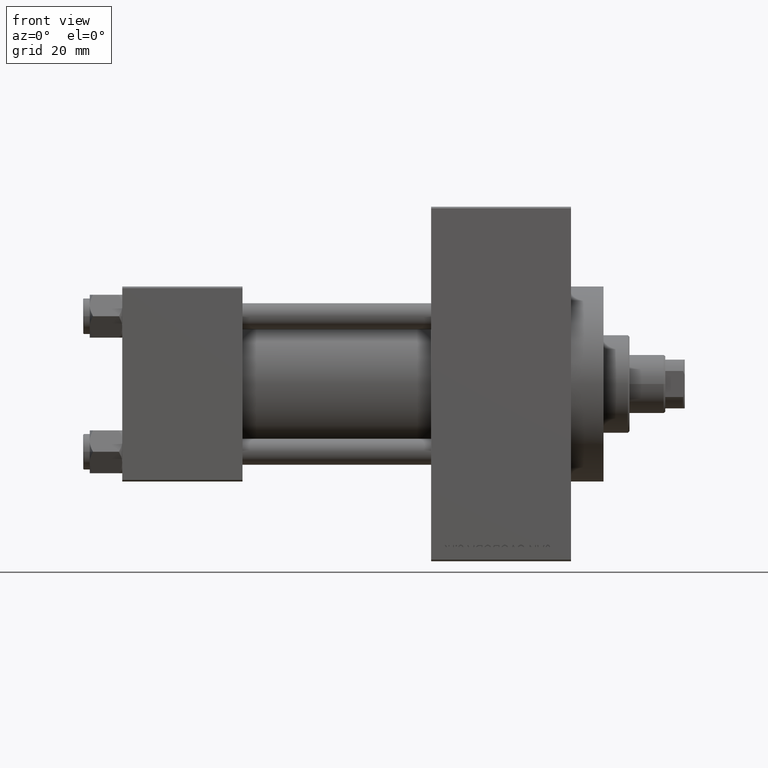
[diagram: clean part render]
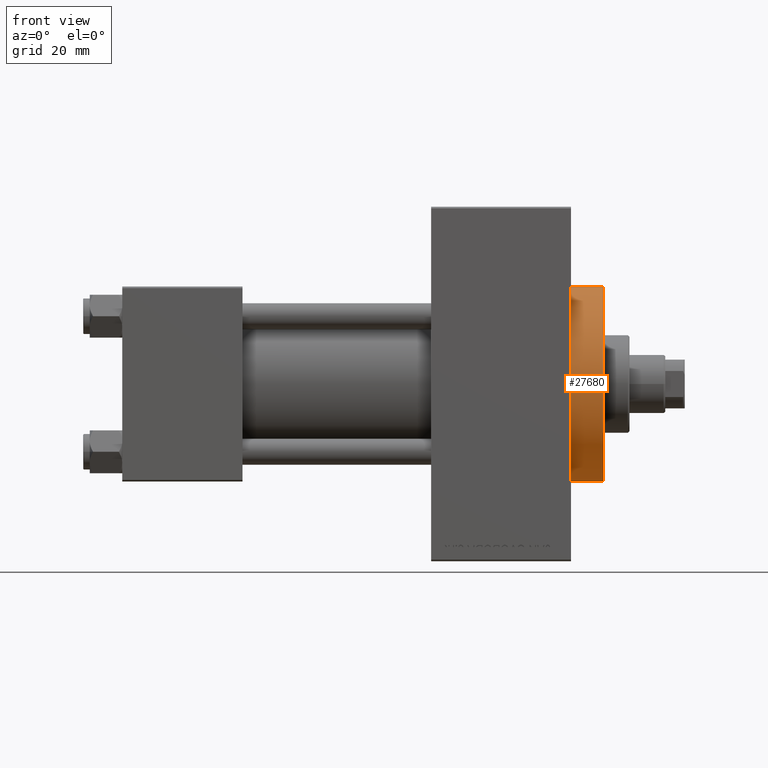
[diagram: same view with one face highlighted and labeled with its STEP entity id]
A machine part, front view. The second image highlights one B-rep face of the part: STEP entity #27680.
In plain terms, the highlighted cylindrical surface (partial cylindrical patch) has radius 30 mm, axis along (-1, -0, -0).
Its self-contained STEP definition (entity closure, byte-faithful):
#523 = DIRECTION ( 'NONE',  ( 1.000000000000000000, 0.000000000000000000, 0.000000000000000000 ) ) ;
#1015 = ORIENTED_EDGE ( 'NONE', *, *, #28588, .T. ) ;
#1358 = EDGE_CURVE ( 'NONE', #16525, #42074, #40102, .T. ) ;
#1513 = DIRECTION ( 'NONE',  ( 0.000000000000000000, 0.000000000000000000, -1.000000000000000000 ) ) ;
#3959 = DIRECTION ( 'NONE',  ( 0.000000000000000000, 0.000000000000000000, -1.000000000000000000 ) ) ;
#4256 = DIRECTION ( 'NONE',  ( -1.000000000000000000, -0.000000000000000000, -0.000000000000000000 ) ) ;
#4460 = CARTESIAN_POINT ( 'NONE',  ( 138.0000000000000000, 0.000000000000000000, 0.000000000000000000 ) ) ;
#4823 = CARTESIAN_POINT ( 'NONE',  ( 138.0000000000000000, 0.000000000000000000, 30.00000000000000000 ) ) ;
#4878 = VERTEX_POINT ( 'NONE', #38927 ) ;
#7000 = AXIS2_PLACEMENT_3D ( 'NONE', #4460, #19666, #3959 ) ;
#9496 = CARTESIAN_POINT ( 'NONE',  ( 148.0000000000000284, 3.673940397442059178E-15, -30.00000000000000000 ) ) ;
#10474 = VERTEX_POINT ( 'NONE', #15239 ) ;
#10672 = EDGE_CURVE ( 'NONE', #10474, #23582, #48368, .T. ) ;
#10825 = ORIENTED_EDGE ( 'NONE', *, *, #1358, .F. ) ;
#11283 = AXIS2_PLACEMENT_3D ( 'NONE', #26966, #523, #1513 ) ;
#12024 = AXIS2_PLACEMENT_3D ( 'NONE', #46394, #4256, #16208 ) ;
#12458 = CYLINDRICAL_SURFACE ( 'NONE', #12024, 30.00000000000000000 ) ;
#12899 = EDGE_CURVE ( 'NONE', #4878, #42074, #25319, .T. ) ;
#14088 = VECTOR ( 'NONE', #41376, 1000.000000000000000 ) ;
#14215 = CARTESIAN_POINT ( 'NONE',  ( 148.0000000000000284, 0.000000000000000000, 30.00000000000000000 ) ) ;
#15239 = CARTESIAN_POINT ( 'NONE',  ( 148.0000000000000284, 0.000000000000000000, 30.00000000000000000 ) ) ;
#15972 = DIRECTION ( 'NONE',  ( -1.000000000000000000, -0.000000000000000000, -0.000000000000000000 ) ) ;
#16208 = DIRECTION ( 'NONE',  ( 0.000000000000000000, 0.000000000000000000, 1.000000000000000000 ) ) ;
#16252 = VECTOR ( 'NONE', #15972, 1000.000000000000000 ) ;
#16525 = VERTEX_POINT ( 'NONE', #9496 ) ;
#19666 = DIRECTION ( 'NONE',  ( 1.000000000000000000, 0.000000000000000000, 0.000000000000000000 ) ) ;
#20215 = FACE_OUTER_BOUND ( 'NONE', #29518, .T. ) ;
#21848 = DIRECTION ( 'NONE',  ( 0.000000000000000000, 0.000000000000000000, -1.000000000000000000 ) ) ;
#23582 = VERTEX_POINT ( 'NONE', #4823 ) ;
#25319 = CIRCLE ( 'NONE', #7000, 30.00000000000000000 ) ;
#26966 = CARTESIAN_POINT ( 'NONE',  ( 138.0000000000000000, 0.000000000000000000, 0.000000000000000000 ) ) ;
#27322 = AXIS2_PLACEMENT_3D ( 'NONE', #33549, #44290, #21848 ) ;
#27680 = ADVANCED_FACE ( 'NONE', ( #20215 ), #12458, .T. ) ;
#28588 = EDGE_CURVE ( 'NONE', #23582, #4878, #31203, .T. ) ;
#29518 = EDGE_LOOP ( 'NONE', ( #10825, #35085, #46767, #1015, #32483 ) ) ;
#31203 = CIRCLE ( 'NONE', #11283, 30.00000000000000000 ) ;
#32483 = ORIENTED_EDGE ( 'NONE', *, *, #12899, .T. ) ;
#33549 = CARTESIAN_POINT ( 'NONE',  ( 148.0000000000000284, 0.000000000000000000, 0.000000000000000000 ) ) ;
#34744 = EDGE_CURVE ( 'NONE', #10474, #16525, #36869, .T. ) ;
#35085 = ORIENTED_EDGE ( 'NONE', *, *, #34744, .F. ) ;
#36869 = CIRCLE ( 'NONE', #27322, 30.00000000000000000 ) ;
#38927 = CARTESIAN_POINT ( 'NONE',  ( 138.0000000000000000, -30.00000000000000000, 0.000000000000000000 ) ) ;
#40102 = LINE ( 'NONE', #43343, #16252 ) ;
#41376 = DIRECTION ( 'NONE',  ( -1.000000000000000000, -0.000000000000000000, -0.000000000000000000 ) ) ;
#42074 = VERTEX_POINT ( 'NONE', #47061 ) ;
#43343 = CARTESIAN_POINT ( 'NONE',  ( 148.0000000000000284, 3.673940397442059178E-15, -30.00000000000000000 ) ) ;
#44290 = DIRECTION ( 'NONE',  ( 1.000000000000000000, 0.000000000000000000, 0.000000000000000000 ) ) ;
#46394 = CARTESIAN_POINT ( 'NONE',  ( 148.0000000000000284, 0.000000000000000000, 0.000000000000000000 ) ) ;
#46767 = ORIENTED_EDGE ( 'NONE', *, *, #10672, .T. ) ;
#47061 = CARTESIAN_POINT ( 'NONE',  ( 138.0000000000000000, 3.673940397442059178E-15, -30.00000000000000000 ) ) ;
#48368 = LINE ( 'NONE', #14215, #14088 ) ;